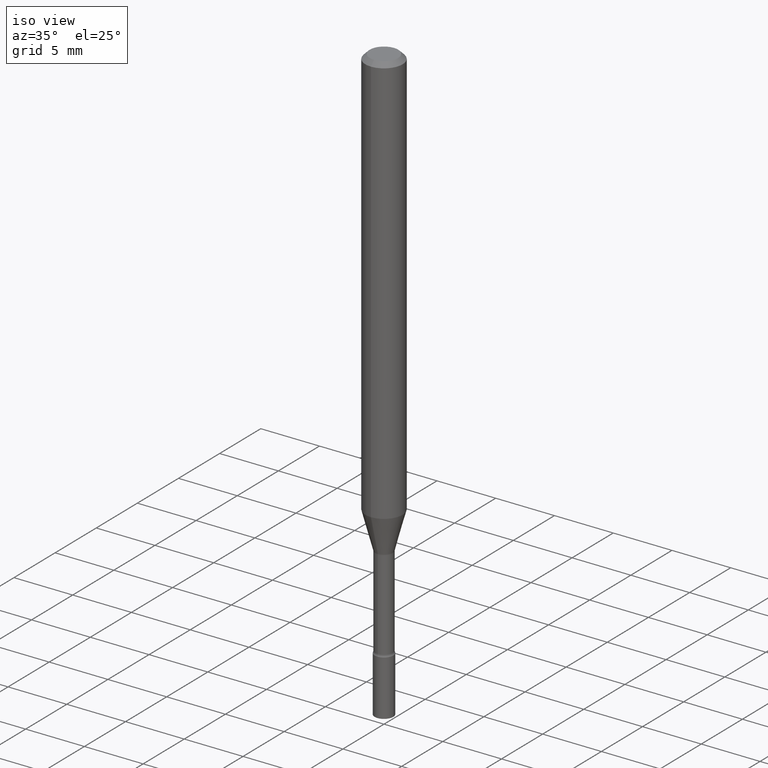
[diagram: clean part render]
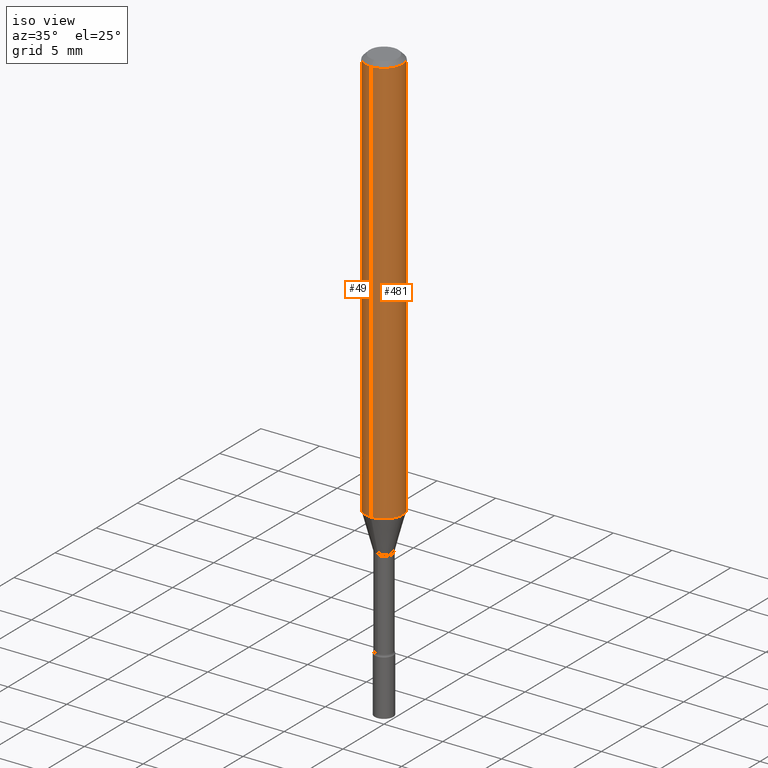
[diagram: same view with one multi-face feature highlighted, each face labeled with its STEP entity id]
A machine part, iso view. The highlighted faces form ONE feature: a constant-radius fillet chain: 2 tangent blend faces with common blend radius 1.5875 mm. The faces share edges in the B-rep.
Their STEP definitions:
[1] entity #49 (Cylinder):
#2 = CARTESIAN_POINT ( 'NONE',  ( -4.364351673553912750E-16, -0.06250000000000005551, -0.01499999999999981209 ) ) ;
#14 = DIRECTION ( 'NONE',  ( -6.982962677686265922E-15, -1.000000000000000000, 4.370956789862821150E-15 ) ) ;
#20 = VERTEX_POINT ( 'NONE', #185 ) ;
#42 = DIRECTION ( 'NONE',  ( -2.445488781453986216E-29, 3.491452733121232169E-15, 1.000000000000000000 ) ) ;
#49 = ADVANCED_FACE ( 'NONE', ( #273 ), #361, .T. ) ;
#51 = ORIENTED_EDGE ( 'NONE', *, *, #133, .F. ) ;
#52 = AXIS2_PLACEMENT_3D ( 'NONE', #487, #279, #445 ) ;
#77 = CIRCLE ( 'NONE', #312, 0.06250000000000000000 ) ;
#81 = CARTESIAN_POINT ( 'NONE',  ( 4.440892098500625669E-16, 0.06250000000000000000, -2.182157958200769613E-16 ) ) ;
#101 = VERTEX_POINT ( 'NONE', #2 ) ;
#104 = VECTOR ( 'NONE', #42, 39.37007874015748143 ) ;
#106 = ORIENTED_EDGE ( 'NONE', *, *, #333, .T. ) ;
#133 = EDGE_CURVE ( 'NONE', #249, #101, #453, .T. ) ;
#164 = DIRECTION ( 'NONE',  ( -2.445488781453986216E-29, 3.491452733121232169E-15, 1.000000000000000000 ) ) ;
#185 = CARTESIAN_POINT ( 'NONE',  ( -4.364351673553580935E-16, -0.06250000000000484335, -1.379536105567578108 ) ) ;
#205 = DIRECTION ( 'NONE',  ( -2.445488781453985936E-29, 3.491452733121231775E-15, 1.000000000000000000 ) ) ;
#235 = CARTESIAN_POINT ( 'NONE',  ( 4.440892098500961428E-16, 0.06249999999999514971, -1.379536105567578552 ) ) ;
#246 = CARTESIAN_POINT ( 'NONE',  ( 3.373640069776234368E-29, -4.816585106223341561E-15, -1.379536105567578330 ) ) ;
#249 = VERTEX_POINT ( 'NONE', #448 ) ;
#257 = VERTEX_POINT ( 'NONE', #235 ) ;
#273 = FACE_OUTER_BOUND ( 'NONE', #383, .T. ) ;
#279 = DIRECTION ( 'NONE',  ( -2.445488781453985936E-29, 3.491452733121231775E-15, 1.000000000000000000 ) ) ;
#312 = AXIS2_PLACEMENT_3D ( 'NONE', #246, #205, #14 ) ;
#325 = CARTESIAN_POINT ( 'NONE',  ( -4.364351673553916201E-16, -0.06250000000000000000, 2.182157958200769613E-16 ) ) ;
#333 = EDGE_CURVE ( 'NONE', #257, #20, #77, .T. ) ;
#338 = ORIENTED_EDGE ( 'NONE', *, *, #442, .T. ) ;
#361 = CYLINDRICAL_SURFACE ( 'NONE', #493, 0.06250000000000000000 ) ;
#383 = EDGE_LOOP ( 'NONE', ( #431, #106, #338, #51 ) ) ;
#396 = CARTESIAN_POINT ( 'NONE',  ( 0.000000000000000000, 0.000000000000000000, 0.000000000000000000 ) ) ;
#400 = DIRECTION ( 'NONE',  ( -2.445488781453985936E-29, 3.491452733121231775E-15, 1.000000000000000000 ) ) ;
#403 = VECTOR ( 'NONE', #164, 39.37007874015748143 ) ;
#431 = ORIENTED_EDGE ( 'NONE', *, *, #462, .F. ) ;
#442 = EDGE_CURVE ( 'NONE', #20, #101, #486, .T. ) ;
#445 = DIRECTION ( 'NONE',  ( -6.982962677686265922E-15, -1.000000000000000000, 3.483106191921935554E-15 ) ) ;
#448 = CARTESIAN_POINT ( 'NONE',  ( 4.440892098500965372E-16, 0.06249999999999995837, -0.01500000000000024751 ) ) ;
#449 = LINE ( 'NONE', #81, #403 ) ;
#453 = CIRCLE ( 'NONE', #52, 0.06250000000000000000 ) ;
#462 = EDGE_CURVE ( 'NONE', #257, #249, #449, .T. ) ;
#477 = DIRECTION ( 'NONE',  ( -6.982962677686265922E-15, -1.000000000000000000, 3.491452733121231381E-15 ) ) ;
#486 = LINE ( 'NONE', #325, #104 ) ;
#487 = CARTESIAN_POINT ( 'NONE',  ( 3.668233172180986383E-31, -5.237179099681858583E-17, -0.01500000000000003067 ) ) ;
#493 = AXIS2_PLACEMENT_3D ( 'NONE', #396, #400, #477 ) ;
[2] entity #481 (Cylinder):
#2 = CARTESIAN_POINT ( 'NONE',  ( -4.364351673553912750E-16, -0.06250000000000005551, -0.01499999999999981209 ) ) ;
#4 = AXIS2_PLACEMENT_3D ( 'NONE', #116, #491, #123 ) ;
#20 = VERTEX_POINT ( 'NONE', #185 ) ;
#30 = CIRCLE ( 'NONE', #263, 0.06250000000000000000 ) ;
#42 = DIRECTION ( 'NONE',  ( -2.445488781453986216E-29, 3.491452733121232169E-15, 1.000000000000000000 ) ) ;
#47 = CARTESIAN_POINT ( 'NONE',  ( 0.000000000000000000, 0.000000000000000000, 0.000000000000000000 ) ) ;
#71 = ORIENTED_EDGE ( 'NONE', *, *, #498, .F. ) ;
#81 = CARTESIAN_POINT ( 'NONE',  ( 4.440892098500625669E-16, 0.06250000000000000000, -2.182157958200769613E-16 ) ) ;
#101 = VERTEX_POINT ( 'NONE', #2 ) ;
#104 = VECTOR ( 'NONE', #42, 39.37007874015748143 ) ;
#116 = CARTESIAN_POINT ( 'NONE',  ( 3.668233172180986383E-31, -5.237179099681858583E-17, -0.01500000000000003067 ) ) ;
#123 = DIRECTION ( 'NONE',  ( -6.982962677686265922E-15, -1.000000000000000000, 3.483106191921935554E-15 ) ) ;
#164 = DIRECTION ( 'NONE',  ( -2.445488781453986216E-29, 3.491452733121232169E-15, 1.000000000000000000 ) ) ;
#166 = CYLINDRICAL_SURFACE ( 'NONE', #320, 0.06250000000000000000 ) ;
#185 = CARTESIAN_POINT ( 'NONE',  ( -4.364351673553580935E-16, -0.06250000000000484335, -1.379536105567578108 ) ) ;
#198 = CARTESIAN_POINT ( 'NONE',  ( 3.373640069776234368E-29, -4.816585106223341561E-15, -1.379536105567578330 ) ) ;
#203 = DIRECTION ( 'NONE',  ( -6.982962677686265922E-15, -1.000000000000000000, 4.370956789862821150E-15 ) ) ;
#207 = ORIENTED_EDGE ( 'NONE', *, *, #462, .T. ) ;
#235 = CARTESIAN_POINT ( 'NONE',  ( 4.440892098500961428E-16, 0.06249999999999514971, -1.379536105567578552 ) ) ;
#249 = VERTEX_POINT ( 'NONE', #448 ) ;
#257 = VERTEX_POINT ( 'NONE', #235 ) ;
#263 = AXIS2_PLACEMENT_3D ( 'NONE', #198, #483, #203 ) ;
#294 = EDGE_LOOP ( 'NONE', ( #459, #207, #71, #351 ) ) ;
#320 = AXIS2_PLACEMENT_3D ( 'NONE', #47, #331, #366 ) ;
#325 = CARTESIAN_POINT ( 'NONE',  ( -4.364351673553916201E-16, -0.06250000000000000000, 2.182157958200769613E-16 ) ) ;
#331 = DIRECTION ( 'NONE',  ( -2.445488781453985936E-29, 3.491452733121231775E-15, 1.000000000000000000 ) ) ;
#351 = ORIENTED_EDGE ( 'NONE', *, *, #442, .F. ) ;
#366 = DIRECTION ( 'NONE',  ( -6.982962677686265922E-15, -1.000000000000000000, 3.491452733121231381E-15 ) ) ;
#389 = CIRCLE ( 'NONE', #4, 0.06250000000000000000 ) ;
#403 = VECTOR ( 'NONE', #164, 39.37007874015748143 ) ;
#420 = EDGE_CURVE ( 'NONE', #20, #257, #30, .T. ) ;
#442 = EDGE_CURVE ( 'NONE', #20, #101, #486, .T. ) ;
#448 = CARTESIAN_POINT ( 'NONE',  ( 4.440892098500965372E-16, 0.06249999999999995837, -0.01500000000000024751 ) ) ;
#449 = LINE ( 'NONE', #81, #403 ) ;
#459 = ORIENTED_EDGE ( 'NONE', *, *, #420, .T. ) ;
#462 = EDGE_CURVE ( 'NONE', #257, #249, #449, .T. ) ;
#481 = ADVANCED_FACE ( 'NONE', ( #494 ), #166, .T. ) ;
#483 = DIRECTION ( 'NONE',  ( -2.445488781453985936E-29, 3.491452733121231775E-15, 1.000000000000000000 ) ) ;
#486 = LINE ( 'NONE', #325, #104 ) ;
#491 = DIRECTION ( 'NONE',  ( -2.445488781453985936E-29, 3.491452733121231775E-15, 1.000000000000000000 ) ) ;
#494 = FACE_OUTER_BOUND ( 'NONE', #294, .T. ) ;
#498 = EDGE_CURVE ( 'NONE', #101, #249, #389, .T. ) ;